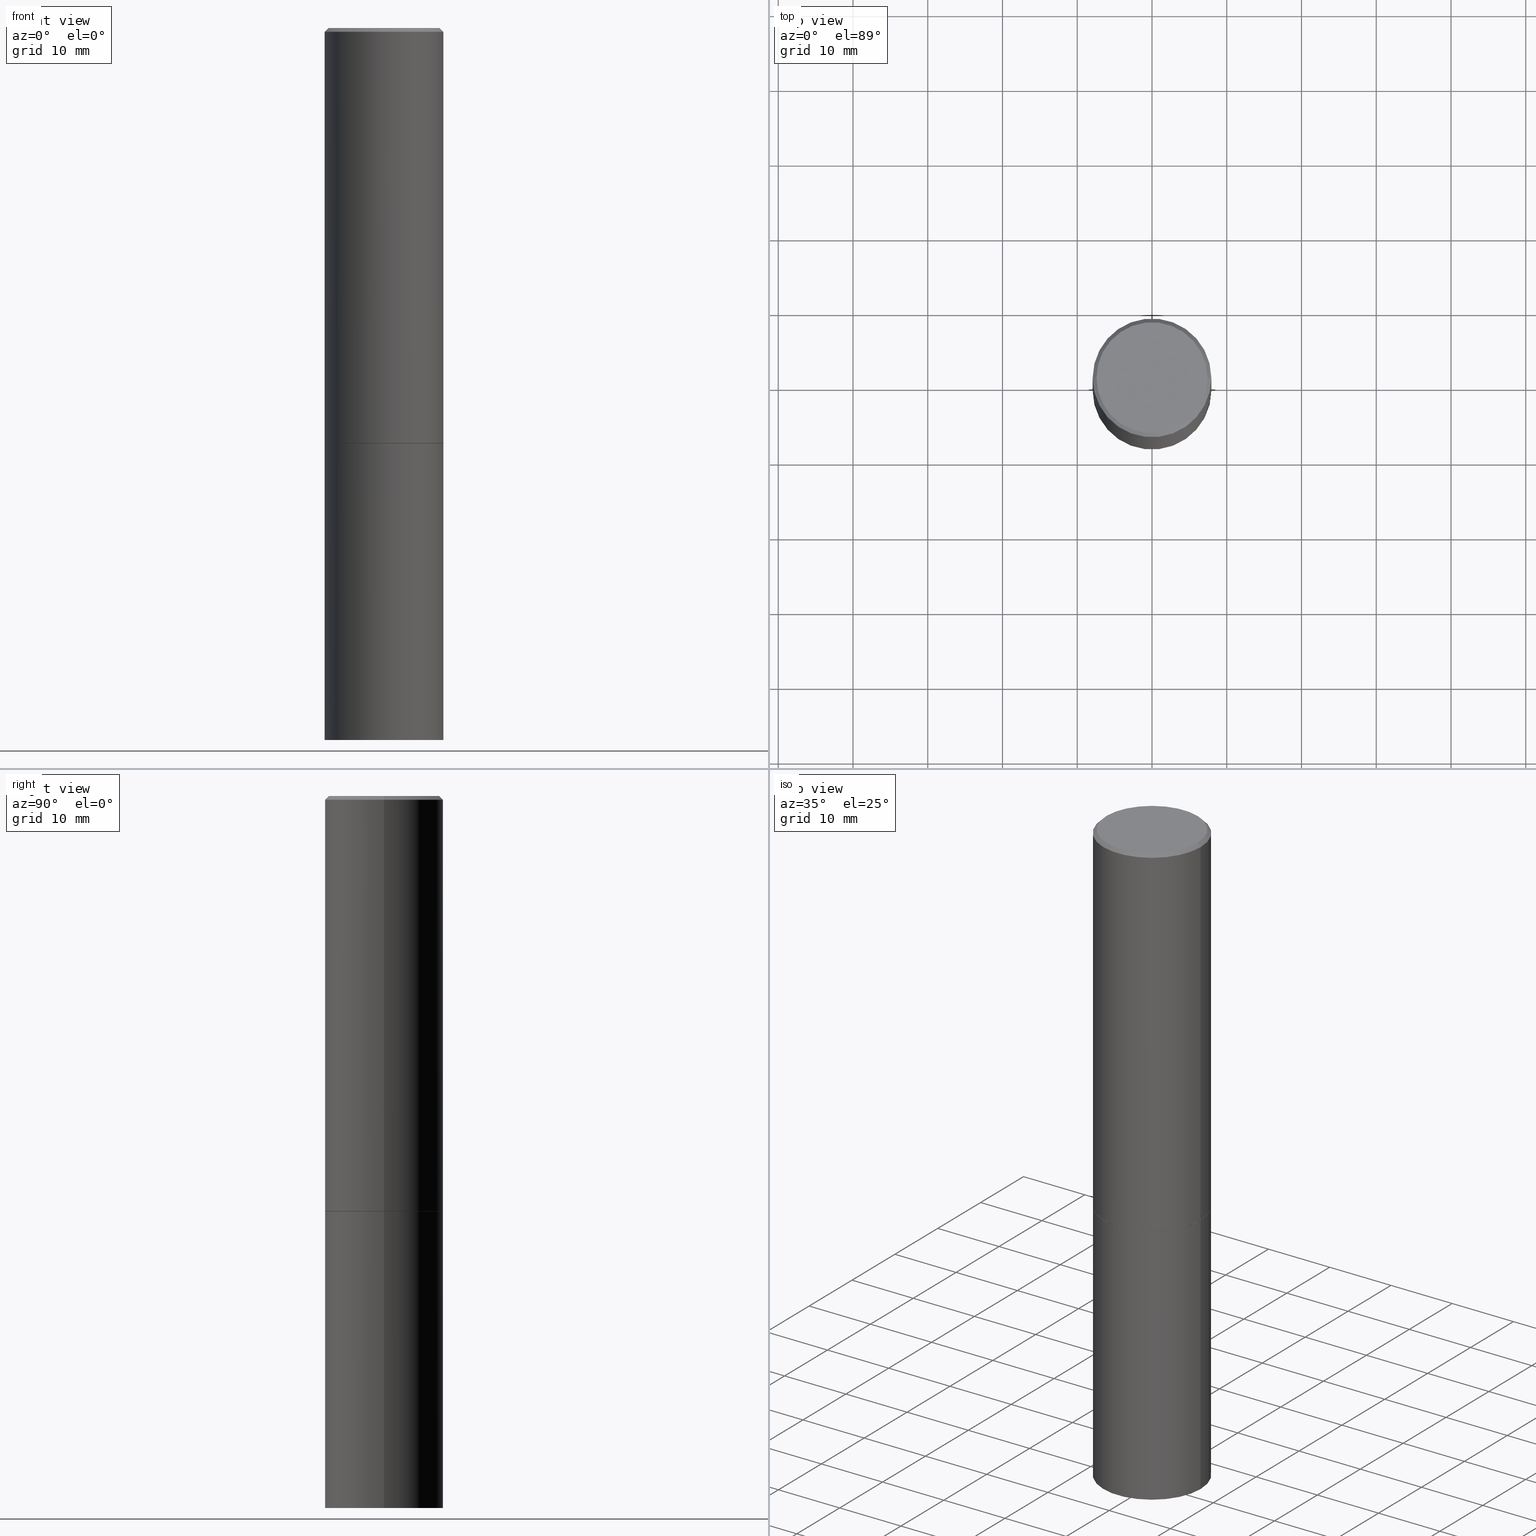
[diagram: canonical four-view strip — front | top / right | iso, engineering-drawing reading convention]
A machine part, canonical four-view strip (front | top / right | iso — engineering-drawing reading convention). The complete STEP part file that produces these views, byte-faithful:
ISO-10303-21;
HEADER;
FILE_DESCRIPTION (( 'STEP AP203' ),
    '1' );
FILE_NAME ('77379.STEP',
    '2024-05-03T15:05:38',
    ( '' ),
    ( '' ),
    'SwSTEP 2.0',
    'SolidWorks 2023',
    '' );
FILE_SCHEMA (( 'CONFIG_CONTROL_DESIGN' ));
ENDSEC;

DATA;
#1 = AXIS2_PLACEMENT_3D ( 'NONE', #196, #319, #249 ) ;
#2 = DATE_TIME_ROLE ( 'creation_date' ) ;
#3 = CARTESIAN_POINT ( 'NONE',  ( 5.349463013529986305E-29, -7.637615428719381825E-15, -2.187500000000000000 ) ) ;
#4 = PERSON_AND_ORGANIZATION ( #237, #353 ) ;
#5 = APPROVAL ( #264, 'UNSPECIFIED' ) ;
#6 = ADVANCED_FACE ( 'NONE', ( #266 ), #269, .T. ) ;
#7 = DIRECTION ( 'NONE',  ( -2.445468806185136597E-29, 3.491481338843145583E-15, 1.000000000000000000 ) ) ;
#8 = VERTEX_POINT ( 'NONE', #366 ) ;
#9 = CARTESIAN_POINT ( 'NONE',  ( 0.3114999999999999991, -9.812808302818652580E-15, -2.187500000000000000 ) ) ;
#10 = CARTESIAN_POINT ( 'NONE',  ( -0.3125000000000000000, -8.144889175440275750E-15, -2.187500000000000000 ) ) ;
#11 = VERTEX_POINT ( 'NONE', #212 ) ;
#12 = APPROVAL_STATUS ( 'not_yet_approved' ) ;
#13 = VECTOR ( 'NONE', #91, 39.37007874015748143 ) ;
#14 = CARTESIAN_POINT ( 'NONE',  ( 2.182175836777049855E-15, 0.3124999999999868994, -3.750000000000001332 ) ) ;
#15 = COORDINATED_UNIVERSAL_TIME_OFFSET ( 5, 0, .BEHIND. ) ;
#16 = LOCAL_TIME ( 11, 5, 38.00000000000000000, #122 ) ;
#17 = DIRECTION ( 'NONE',  ( -2.445468806185136597E-29, 3.491481338843145583E-15, 1.000000000000000000 ) ) ;
#18 = AXIS2_PLACEMENT_3D ( 'NONE', #116, #148, #216 ) ;
#19 = DIRECTION ( 'NONE',  ( -2.438088387897960049E-29, 3.491481338843145188E-15, 1.000000000000000000 ) ) ;
#20 = EDGE_CURVE ( 'NONE', #312, #115, #53, .T. ) ;
#21 = CALENDAR_DATE ( 2024, 3, 5 ) ;
#22 = FACE_OUTER_BOUND ( 'NONE', #145, .T. ) ;
#23 = VECTOR ( 'NONE', #134, 39.37007874015748143 ) ;
#24 = EDGE_LOOP ( 'NONE', ( #320, #309 ) ) ;
#25 = AXIS2_PLACEMENT_3D ( 'NONE', #45, #296, #350 ) ;
#26 = ORIENTED_EDGE ( 'NONE', *, *, #183, .T. ) ;
#27 = EDGE_LOOP ( 'NONE', ( #209, #365, #273, #213 ) ) ;
#28 = CONICAL_SURFACE ( 'NONE', #230, 0.3114999999999999991, 0.7853981633973801113 ) ;
#29 = PERSON_AND_ORGANIZATION ( #237, #353 ) ;
#30 = DIRECTION ( 'NONE',  ( -1.000000000000000000, 6.982962677686265133E-15, 0.000000000000000000 ) ) ;
#31 = LINE ( 'NONE', #76, #222 ) ;
#32 = CARTESIAN_POINT ( 'NONE',  ( -0.3124999999999998335, 2.112346210000093866E-15, -0.02000000000000008021 ) ) ;
#33 = PERSON_AND_ORGANIZATION_ROLE ( 'creator' ) ;
#34 = DIRECTION ( 'NONE',  ( 2.445468806185136597E-29, -3.491481338843145583E-15, -1.000000000000000000 ) ) ;
#35 = CYLINDRICAL_SURFACE ( 'NONE', #100, 0.3124999999999998890 ) ;
#36 = ADVANCED_FACE ( 'NONE', ( #92 ), #74, .F. ) ;
#37 = APPLICATION_PROTOCOL_DEFINITION ( 'international standard', 'config_control_design', 1994, #110 ) ;
#38 = AXIS2_PLACEMENT_3D ( 'NONE', #137, #334, #354 ) ;
#39 = DIRECTION ( 'NONE',  ( -2.445468806185136597E-29, 3.491481338843145583E-15, 1.000000000000000000 ) ) ;
#40 = CARTESIAN_POINT ( 'NONE',  ( -0.2924999999999997602, 2.077431396611662611E-15, 8.537024980186416602E-18 ) ) ;
#41 = FACE_OUTER_BOUND ( 'NONE', #198, .T. ) ;
#42 = CARTESIAN_POINT ( 'NONE',  ( 0.3114999999999999991, -9.812808302818652580E-15, -2.187500000000000000 ) ) ;
#43 = CARTESIAN_POINT ( 'NONE',  ( 0.000000000000000000, 0.000000000000000000, 0.000000000000000000 ) ) ;
#44 = APPROVAL ( #12, 'UNSPECIFIED' ) ;
#45 = CARTESIAN_POINT ( 'NONE',  ( 5.349463013529986305E-29, -7.637615428719381825E-15, -2.187500000000000000 ) ) ;
#46 = CARTESIAN_POINT ( 'NONE',  ( 5.349463013529986305E-29, -7.637615428719381825E-15, -2.187500000000000000 ) ) ;
#47 = COORDINATED_UNIVERSAL_TIME_OFFSET ( 5, 0, .BEHIND. ) ;
#48 = CARTESIAN_POINT ( 'NONE',  ( 0.3124999999999998890, -2.182175836776957558E-15, 1.523805242436229235E-29 ) ) ;
#49 = DIRECTION ( 'NONE',  ( -2.445468806185136597E-29, 3.491481338843145583E-15, 1.000000000000000000 ) ) ;
#50 = APPLICATION_CONTEXT ( 'configuration controlled 3d designs of mechanical parts and assemblies' ) ;
#51 = EDGE_CURVE ( 'NONE', #11, #254, #255, .T. ) ;
#52 =( NAMED_UNIT ( * ) SI_UNIT ( $, .STERADIAN. ) SOLID_ANGLE_UNIT ( ) );
#53 = CIRCLE ( 'NONE', #325, 0.3124999999999999445 ) ;
#54 = ORIENTED_EDGE ( 'NONE', *, *, #184, .T. ) ;
#55 = EDGE_LOOP ( 'NONE', ( #220, #306, #347, #271 ) ) ;
#56 = SECURITY_CLASSIFICATION ( '', '', #275 ) ;
#57 = ADVANCED_FACE ( 'NONE', ( #286 ), #35, .T. ) ;
#58 = EDGE_LOOP ( 'NONE', ( #348, #362, #81, #166 ) ) ;
#59 = ORIENTED_EDGE ( 'NONE', *, *, #333, .T. ) ;
#60 = DIRECTION ( 'NONE',  ( 1.000000000000000000, -6.982962677686266711E-15, 0.000000000000000000 ) ) ;
#61 = EDGE_CURVE ( 'NONE', #115, #272, #327, .T. ) ;
#62 = CC_DESIGN_SECURITY_CLASSIFICATION ( #56, ( #228 ) ) ;
#63 = ORIENTED_EDGE ( 'NONE', *, *, #253, .T. ) ;
#64 = CIRCLE ( 'NONE', #169, 0.2924999999999997602 ) ;
#65 = COORDINATED_UNIVERSAL_TIME_OFFSET ( 5, 0, .BEHIND. ) ;
#66 = DIRECTION ( 'NONE',  ( -2.445468806185136597E-29, 3.491481338843145583E-15, 1.000000000000000000 ) ) ;
#67 = DIRECTION ( 'NONE',  ( -2.445468806185136597E-29, 3.491481338843145583E-15, 1.000000000000000000 ) ) ;
#68 = DATE_AND_TIME ( #349, #16 ) ;
#69 = CARTESIAN_POINT ( 'NONE',  ( 4.890937612370293302E-31, -6.982962677686318726E-17, -0.02000000000000008021 ) ) ;
#70 = DIRECTION ( 'NONE',  ( 1.000000000000000000, -6.982962677686266711E-15, 4.876176775795935232E-29 ) ) ;
#71 = APPROVAL_STATUS ( 'not_yet_approved' ) ;
#72 = DIRECTION ( 'NONE',  ( -0.7071067811865469066, 2.468850131082251144E-15, -0.7071067811865479058 ) ) ;
#73 = DIRECTION ( 'NONE',  ( -0.7071067811864992780, 7.493145998870180611E-15, 0.7071067811865957564 ) ) ;
#74 = PLANE ( 'NONE',  #356 ) ;
#75 = CONICAL_SURFACE ( 'NONE', #268, 0.3124999999999998335, 0.7853981633974476129 ) ;
#76 = CARTESIAN_POINT ( 'NONE',  ( 0.3124999999999998335, -2.213735251080465334E-15, -0.02000000000000008021 ) ) ;
#77 = DATE_AND_TIME ( #203, #246 ) ;
#78 = VECTOR ( 'NONE', #161, 39.37007874015748143 ) ;
#79 = ADVANCED_FACE ( 'NONE', ( #324 ), #175, .T. ) ;
#80 = CIRCLE ( 'NONE', #278, 0.3124999999999998335 ) ;
#81 = ORIENTED_EDGE ( 'NONE', *, *, #357, .T. ) ;
#82 = CONICAL_SURFACE ( 'NONE', #316, 0.3124999999999998335, 0.7853981633974476129 ) ;
#83 = VERTEX_POINT ( 'NONE', #171 ) ;
#84 = ORIENTED_EDGE ( 'NONE', *, *, #61, .F. ) ;
#85 = PRODUCT_RELATED_PRODUCT_CATEGORY ( 'detail', '', ( #360 ) ) ;
#86 = DIRECTION ( 'NONE',  ( 0.000000000000000000, 0.000000000000000000, 1.000000000000000000 ) ) ;
#87 = AXIS2_PLACEMENT_3D ( 'NONE', #331, #294, #208 ) ;
#88 = DIRECTION ( 'NONE',  ( -2.445468806185136597E-29, 3.491481338843145583E-15, 1.000000000000000000 ) ) ;
#89 = UNCERTAINTY_MEASURE_WITH_UNIT (LENGTH_MEASURE( 1.000000000000000082E-05 ), #188, 'distance_accuracy_value', 'NONE');
#90 = DIRECTION ( 'NONE',  ( 1.000000000000000000, -6.982962677686269077E-15, 0.000000000000000000 ) ) ;
#91 = DIRECTION ( 'NONE',  ( -2.445468806185136877E-29, 3.491481338843145188E-15, 1.000000000000000000 ) ) ;
#92 = FACE_OUTER_BOUND ( 'NONE', #24, .T. ) ;
#93 = DATE_AND_TIME ( #225, #104 ) ;
#94 = VERTEX_POINT ( 'NONE', #293 ) ;
#95 = EDGE_CURVE ( 'NONE', #123, #94, #31, .T. ) ;
#96 = CARTESIAN_POINT ( 'NONE',  ( -0.3114999999999999991, -5.424274806826669752E-15, -2.187500000000000000 ) ) ;
#97 = APPROVAL_DATE_TIME ( #127, #142 ) ;
#98 = LINE ( 'NONE', #48, #78 ) ;
#99 = LOCAL_TIME ( 11, 5, 38.00000000000000000, #65 ) ;
#100 = AXIS2_PLACEMENT_3D ( 'NONE', #201, #283, #70 ) ;
#101 = AXIS2_PLACEMENT_3D ( 'NONE', #14, #126, #345 ) ;
#102 = DIRECTION ( 'NONE',  ( 1.000000000000000000, -6.982962677686266711E-15, 4.876067333457693400E-29 ) ) ;
#103 = ADVANCED_BREP_SHAPE_REPRESENTATION ( '77379', ( #358, #364, #355 ), #206 ) ;
#104 = LOCAL_TIME ( 11, 5, 38.00000000000000000, #256 ) ;
#105 = ORIENTED_EDGE ( 'NONE', *, *, #276, .F. ) ;
#106 = DIMENSIONAL_EXPONENTS ( 1.000000000000000000, 0.000000000000000000, 0.000000000000000000, 0.000000000000000000, 0.000000000000000000, 0.000000000000000000, 0.000000000000000000 ) ;
#107 = APPROVAL_PERSON_ORGANIZATION ( #4, #142, #155 ) ;
#108 = AXIS2_PLACEMENT_3D ( 'NONE', #259, #17, #102 ) ;
#109 =( LENGTH_UNIT ( ) NAMED_UNIT ( * ) SI_UNIT ( $, .METRE. ) );
#110 = APPLICATION_CONTEXT ( 'configuration controlled 3d designs of mechanical parts and assemblies' ) ;
#111 = CC_DESIGN_APPROVAL ( #5, ( #56 ) ) ;
#112 = ORIENTED_EDGE ( 'NONE', *, *, #51, .T. ) ;
#113 = VECTOR ( 'NONE', #73, 39.37007874015748143 ) ;
#114 = VERTEX_POINT ( 'NONE', #10 ) ;
#115 = VERTEX_POINT ( 'NONE', #224 ) ;
#116 = CARTESIAN_POINT ( 'NONE',  ( 5.347017544723800702E-29, -7.634123947380537240E-15, -2.186500000000000110 ) ) ;
#117 = ORIENTED_EDGE ( 'NONE', *, *, #195, .T. ) ;
#118 = DIRECTION ( 'NONE',  ( 1.000000000000000000, -6.982962677686265133E-15, 0.000000000000000000 ) ) ;
#119 = FACE_OUTER_BOUND ( 'NONE', #187, .T. ) ;
#120 = CC_DESIGN_APPROVAL ( #44, ( #234 ) ) ;
#121 = LINE ( 'NONE', #326, #274 ) ;
#122 = COORDINATED_UNIVERSAL_TIME_OFFSET ( 5, 0, .BEHIND. ) ;
#123 = VERTEX_POINT ( 'NONE', #179 ) ;
#124 = ADVANCED_FACE ( 'NONE', ( #295 ), #154, .T. ) ;
#125 = DIRECTION ( 'NONE',  ( -2.445468806185136597E-29, 3.491481338843145583E-15, 1.000000000000000000 ) ) ;
#126 = DIRECTION ( 'NONE',  ( 2.438088387897960049E-29, -3.491481338843145188E-15, -1.000000000000000000 ) ) ;
#127 = DATE_AND_TIME ( #193, #219 ) ;
#128 = CC_DESIGN_PERSON_AND_ORGANIZATION_ASSIGNMENT ( #29, #167, ( #228 ) ) ;
#129 = CARTESIAN_POINT ( 'NONE',  ( 2.182175836777011595E-15, 0.3124999999999923395, -2.187500000000001332 ) ) ;
#130 = CIRCLE ( 'NONE', #186, 0.3124999999999998335 ) ;
#131 = PLANE ( 'NONE',  #339 ) ;
#132 = DIRECTION ( 'NONE',  ( -2.445468806185136597E-29, 3.491481338843145583E-15, 1.000000000000000000 ) ) ;
#133 = EDGE_CURVE ( 'NONE', #272, #94, #130, .T. ) ;
#134 = DIRECTION ( 'NONE',  ( 0.7071067811864992780, -2.468850131081751401E-15, 0.7071067811865957564 ) ) ;
#135 = AXIS2_PLACEMENT_3D ( 'NONE', #199, #125, #174 ) ;
#136 = PERSON_AND_ORGANIZATION ( #237, #353 ) ;
#137 = CARTESIAN_POINT ( 'NONE',  ( 2.042516583223230962E-15, 0.2924999999999997602, -1.016989779121518801E-15 ) ) ;
#138 = AXIS2_PLACEMENT_3D ( 'NONE', #150, #257, #317 ) ;
#139 = EDGE_LOOP ( 'NONE', ( #26, #341 ) ) ;
#140 = APPLICATION_PROTOCOL_DEFINITION ( 'international standard', 'config_control_design', 1994, #50 ) ;
#141 = ORIENTED_EDGE ( 'NONE', *, *, #195, .F. ) ;
#142 = APPROVAL ( #71, 'UNSPECIFIED' ) ;
#143 = ADVANCED_FACE ( 'NONE', ( #41 ), #217, .T. ) ;
#144 = DIRECTION ( 'NONE',  ( 1.000000000000000000, -6.982962677686266711E-15, 4.876176775795935232E-29 ) ) ;
#145 = EDGE_LOOP ( 'NONE', ( #105, #112, #117, #247 ) ) ;
#146 = CLOSED_SHELL ( 'NONE', ( #321, #6, #300, #337, #57, #180, #297, #177 ) ) ;
#147 = PERSON_AND_ORGANIZATION ( #237, #353 ) ;
#148 = DIRECTION ( 'NONE',  ( -2.445468806185136597E-29, 3.491481338843145583E-15, 1.000000000000000000 ) ) ;
#149 = DIRECTION ( 'NONE',  ( 0.7071067811865469066, -7.319954787623252890E-15, -0.7071067811865479058 ) ) ;
#150 = CARTESIAN_POINT ( 'NONE',  ( 0.000000000000000000, 0.000000000000000000, 0.000000000000000000 ) ) ;
#151 = DIRECTION ( 'NONE',  ( -1.000000000000000000, 6.982962677686265133E-15, 0.000000000000000000 ) ) ;
#152 = LINE ( 'NONE', #223, #13 ) ;
#153 = EDGE_CURVE ( 'NONE', #114, #8, #181, .T. ) ;
#154 = CYLINDRICAL_SURFACE ( 'NONE', #303, 0.3125000000000000000 ) ;
#155 = APPROVAL_ROLE ( '' ) ;
#156 = DIRECTION ( 'NONE',  ( -2.445468806185136877E-29, 3.491481338843145188E-15, 1.000000000000000000 ) ) ;
#157 = DIRECTION ( 'NONE',  ( -2.445468806185136597E-29, 3.491481338843145583E-15, 1.000000000000000000 ) ) ;
#158 = DATE_AND_TIME ( #21, #99 ) ;
#159 = FACE_OUTER_BOUND ( 'NONE', #343, .T. ) ;
#160 = AXIS2_PLACEMENT_3D ( 'NONE', #231, #67, #329 ) ;
#161 = DIRECTION ( 'NONE',  ( -2.445468806185136877E-29, 3.491481338843145188E-15, 1.000000000000000000 ) ) ;
#162 = DIRECTION ( 'NONE',  ( 1.000000000000000000, -6.982962677686269077E-15, 0.000000000000000000 ) ) ;
#163 = CIRCLE ( 'NONE', #1, 0.3125000000000000000 ) ;
#164 = ORIENTED_EDGE ( 'NONE', *, *, #61, .T. ) ;
#165 = ORIENTED_EDGE ( 'NONE', *, *, #20, .T. ) ;
#166 = ORIENTED_EDGE ( 'NONE', *, *, #133, .T. ) ;
#167 = PERSON_AND_ORGANIZATION_ROLE ( 'design_supplier' ) ;
#168 = ORIENTED_EDGE ( 'NONE', *, *, #133, .F. ) ;
#169 = AXIS2_PLACEMENT_3D ( 'NONE', #205, #132, #178 ) ;
#170 = APPROVAL_ROLE ( '' ) ;
#171 = CARTESIAN_POINT ( 'NONE',  ( 0.3125000000000000000, -1.527523085743875734E-14, -3.750000000000000000 ) ) ;
#172 = DIRECTION ( 'NONE',  ( -1.000000000000000000, 6.982962677686265922E-15, -4.876176775795935793E-29 ) ) ;
#173 = CARTESIAN_POINT ( 'NONE',  ( 0.3124999999999999445, -9.816299784157495587E-15, -2.186500000000000110 ) ) ;
#174 = DIRECTION ( 'NONE',  ( 1.000000000000000000, -6.982962677686269077E-15, 0.000000000000000000 ) ) ;
#175 = CYLINDRICAL_SURFACE ( 'NONE', #138, 0.3125000000000000000 ) ;
#176 = CIRCLE ( 'NONE', #87, 0.3114999999999999991 ) ;
#177 = ADVANCED_FACE ( 'NONE', ( #332 ), #267, .F. ) ;
#178 = DIRECTION ( 'NONE',  ( 1.000000000000000000, -6.982962677686266711E-15, 4.876067333457693400E-29 ) ) ;
#179 = CARTESIAN_POINT ( 'NONE',  ( 0.2924999999999997602, -2.110215457714318353E-15, 8.537024980215342529E-18 ) ) ;
#180 = ADVANCED_FACE ( 'NONE', ( #22 ), #292, .T. ) ;
#181 = CIRCLE ( 'NONE', #308, 0.3125000000000000000 ) ;
#182 = APPROVAL_DATE_TIME ( #77, #5 ) ;
#183 = EDGE_CURVE ( 'NONE', #284, #123, #236, .T. ) ;
#184 = EDGE_CURVE ( 'NONE', #312, #94, #98, .T. ) ;
#185 = LENGTH_MEASURE_WITH_UNIT ( LENGTH_MEASURE( 0.02539999999999999897 ), #109 );
#186 = AXIS2_PLACEMENT_3D ( 'NONE', #202, #157, #118 ) ;
#187 = EDGE_LOOP ( 'NONE', ( #63, #363, #211, #141 ) ) ;
#188 =( CONVERSION_BASED_UNIT ( 'INCH', #185 ) LENGTH_UNIT ( ) NAMED_UNIT ( #106 ) );
#189 = ORIENTED_EDGE ( 'NONE', *, *, #184, .F. ) ;
#190 = DIRECTION ( 'NONE',  ( -2.445468806185136597E-29, 3.491481338843145583E-15, 1.000000000000000000 ) ) ;
#191 = ORIENTED_EDGE ( 'NONE', *, *, #310, .F. ) ;
#192 = DIRECTION ( 'NONE',  ( -2.445468806185136597E-29, 3.491481338843145583E-15, 1.000000000000000000 ) ) ;
#193 = CALENDAR_DATE ( 2024, 3, 5 ) ;
#194 = ORIENTED_EDGE ( 'NONE', *, *, #361, .F. ) ;
#195 = EDGE_CURVE ( 'NONE', #254, #312, #261, .T. ) ;
#196 = CARTESIAN_POINT ( 'NONE',  ( 9.170508023194262238E-29, -1.309305502066179741E-14, -3.750000000000000000 ) ) ;
#197 = PERSON_AND_ORGANIZATION ( #237, #353 ) ;
#198 = EDGE_LOOP ( 'NONE', ( #342, #191 ) ) ;
#199 = CARTESIAN_POINT ( 'NONE',  ( 9.170508023194262238E-29, -1.309305502066179741E-14, -3.750000000000000000 ) ) ;
#200 = PERSON_AND_ORGANIZATION ( #237, #353 ) ;
#201 = CARTESIAN_POINT ( 'NONE',  ( 0.000000000000000000, 0.000000000000000000, 0.000000000000000000 ) ) ;
#202 = CARTESIAN_POINT ( 'NONE',  ( 4.890937612370293302E-31, -6.982962677686318726E-17, -0.02000000000000008021 ) ) ;
#203 = CALENDAR_DATE ( 2024, 3, 5 ) ;
#204 = CIRCLE ( 'NONE', #135, 0.3125000000000000000 ) ;
#205 = CARTESIAN_POINT ( 'NONE',  ( -2.087702828670439639E-46, 2.980686340760894400E-32, 8.537024980200822558E-18 ) ) ;
#206 =( GEOMETRIC_REPRESENTATION_CONTEXT ( 3 ) GLOBAL_UNCERTAINTY_ASSIGNED_CONTEXT ( ( #89 ) ) GLOBAL_UNIT_ASSIGNED_CONTEXT ( ( #188, #270, #52 ) ) REPRESENTATION_CONTEXT ( 'NONE', 'WORKASPACE' ) );
#207 = VECTOR ( 'NONE', #72, 39.37007874015748854 ) ;
#208 = DIRECTION ( 'NONE',  ( 1.000000000000000000, -6.982962677686265922E-15, 0.000000000000000000 ) ) ;
#209 = ORIENTED_EDGE ( 'NONE', *, *, #240, .F. ) ;
#210 = DIRECTION ( 'NONE',  ( 1.000000000000000000, 0.000000000000000000, 0.000000000000000000 ) ) ;
#211 = ORIENTED_EDGE ( 'NONE', *, *, #20, .F. ) ;
#212 = CARTESIAN_POINT ( 'NONE',  ( -0.3114999999999999991, -5.418976352478447350E-15, -2.187500000000000000 ) ) ;
#213 = ORIENTED_EDGE ( 'NONE', *, *, #357, .F. ) ;
#214 = CC_DESIGN_DATE_AND_TIME_ASSIGNMENT ( #158, #238, ( #56 ) ) ;
#215 = CARTESIAN_POINT ( 'NONE',  ( 5.349463013529986305E-29, -7.637615428719381825E-15, -2.187500000000000000 ) ) ;
#216 = DIRECTION ( 'NONE',  ( 1.000000000000000000, -6.982962677686266711E-15, 0.000000000000000000 ) ) ;
#217 = PLANE ( 'NONE',  #101 ) ;
#218 = PERSON_AND_ORGANIZATION ( #237, #353 ) ;
#219 = LOCAL_TIME ( 11, 5, 38.00000000000000000, #15 ) ;
#220 = ORIENTED_EDGE ( 'NONE', *, *, #265, .T. ) ;
#221 = DIRECTION ( 'NONE',  ( 1.000000000000000000, -6.982962677686265133E-15, 0.000000000000000000 ) ) ;
#222 = VECTOR ( 'NONE', #149, 39.37007874015748854 ) ;
#223 = CARTESIAN_POINT ( 'NONE',  ( 0.3125000000000000000, -2.182175836776958347E-15, 1.523805242436230075E-29 ) ) ;
#224 = CARTESIAN_POINT ( 'NONE',  ( -0.3124999999999999445, -1.631530737828387780E-15, -2.186500000000000110 ) ) ;
#225 = CALENDAR_DATE ( 2024, 3, 5 ) ;
#226 = EDGE_LOOP ( 'NONE', ( #84, #59, #54, #168 ) ) ;
#227 = LINE ( 'NONE', #96, #113 ) ;
#228 = PRODUCT_DEFINITION_FORMATION_WITH_SPECIFIED_SOURCE ( 'ANY', '', #360, .NOT_KNOWN. ) ;
#229 = DIRECTION ( 'NONE',  ( -2.445468806185136877E-29, 3.491481338843145188E-15, 1.000000000000000000 ) ) ;
#230 = AXIS2_PLACEMENT_3D ( 'NONE', #215, #66, #288 ) ;
#231 = CARTESIAN_POINT ( 'NONE',  ( 5.349463013529986305E-29, -7.637615428719381825E-15, -2.187500000000000000 ) ) ;
#232 = CARTESIAN_POINT ( 'NONE',  ( 5.349463013529986305E-29, -7.637615428719381825E-15, -2.187500000000000000 ) ) ;
#233 = CARTESIAN_POINT ( 'NONE',  ( -0.3125000000000000000, -8.144889175440275750E-15, -3.750000000000000000 ) ) ;
#234 = PRODUCT_DEFINITION ( 'UNKNOWN', '', #228, #277 ) ;
#235 = CC_DESIGN_PERSON_AND_ORGANIZATION_ASSIGNMENT ( #315, #311, ( #228 ) ) ;
#236 = CIRCLE ( 'NONE', #108, 0.2924999999999997602 ) ;
#237 = PERSON ( 'UNSPECIFIED', 'UNSPECIFIED', 'UNSPECIFIED', ('UNSPECIFIED'), ('UNSPECIFIED'), ('UNSPECIFIED') ) ;
#238 = DATE_TIME_ROLE ( 'classification_date' ) ;
#239 = PRODUCT_DEFINITION_SHAPE ( 'NONE', 'NONE',  #234 ) ;
#240 = EDGE_CURVE ( 'NONE', #123, #284, #64, .T. ) ;
#241 = PERSON_AND_ORGANIZATION_ROLE ( 'design_owner' ) ;
#242 = APPROVAL_PERSON_ORGANIZATION ( #200, #5, #299 ) ;
#243 = VERTEX_POINT ( 'NONE', #233 ) ;
#244 = MECHANICAL_CONTEXT ( 'NONE', #50, 'mechanical' ) ;
#245 = ORIENTED_EDGE ( 'NONE', *, *, #153, .F. ) ;
#246 = LOCAL_TIME ( 11, 5, 38.00000000000000000, #47 ) ;
#247 = ORIENTED_EDGE ( 'NONE', *, *, #333, .F. ) ;
#248 = CIRCLE ( 'NONE', #304, 0.3125000000000000000 ) ;
#249 = DIRECTION ( 'NONE',  ( 1.000000000000000000, -6.982962677686269077E-15, 0.000000000000000000 ) ) ;
#250 = ORIENTED_EDGE ( 'NONE', *, *, #253, .F. ) ;
#251 = PERSON_AND_ORGANIZATION_ROLE ( 'classification_officer' ) ;
#252 = CARTESIAN_POINT ( 'NONE',  ( -0.3124999999999998890, 2.220446049250312292E-15, -1.537167215704657391E-29 ) ) ;
#253 = EDGE_CURVE ( 'NONE', #254, #11, #176, .T. ) ;
#254 = VERTEX_POINT ( 'NONE', #9 ) ;
#255 = CIRCLE ( 'NONE', #160, 0.3114999999999999991 ) ;
#256 = COORDINATED_UNIVERSAL_TIME_OFFSET ( 5, 0, .BEHIND. ) ;
#257 = DIRECTION ( 'NONE',  ( -2.445468806185136597E-29, 3.491481338843145583E-15, 1.000000000000000000 ) ) ;
#258 = EDGE_CURVE ( 'NONE', #243, #114, #121, .T. ) ;
#259 = CARTESIAN_POINT ( 'NONE',  ( -2.087702828670439639E-46, 2.980686340760894400E-32, 8.537024980200822558E-18 ) ) ;
#260 = AXIS2_PLACEMENT_3D ( 'NONE', #335, #88, #144 ) ;
#261 = LINE ( 'NONE', #42, #23 ) ;
#262 = EDGE_CURVE ( 'NONE', #83, #8, #152, .T. ) ;
#263 = CC_DESIGN_PERSON_AND_ORGANIZATION_ASSIGNMENT ( #197, #33, ( #234 ) ) ;
#264 = APPROVAL_STATUS ( 'not_yet_approved' ) ;
#265 = EDGE_CURVE ( 'NONE', #83, #243, #204, .T. ) ;
#266 = FACE_OUTER_BOUND ( 'NONE', #305, .T. ) ;
#267 = PLANE ( 'NONE',  #38 ) ;
#268 = AXIS2_PLACEMENT_3D ( 'NONE', #69, #351, #30 ) ;
#269 = CYLINDRICAL_SURFACE ( 'NONE', #260, 0.3124999999999998890 ) ;
#270 =( NAMED_UNIT ( * ) PLANE_ANGLE_UNIT ( ) SI_UNIT ( $, .RADIAN. ) );
#271 = ORIENTED_EDGE ( 'NONE', *, *, #262, .F. ) ;
#272 = VERTEX_POINT ( 'NONE', #323 ) ;
#273 = ORIENTED_EDGE ( 'NONE', *, *, #361, .T. ) ;
#274 = VECTOR ( 'NONE', #229, 39.37007874015748143 ) ;
#275 = SECURITY_CLASSIFICATION_LEVEL ( 'unclassified' ) ;
#276 = EDGE_CURVE ( 'NONE', #11, #115, #227, .T. ) ;
#277 = DESIGN_CONTEXT ( 'detailed design', #110, 'design' ) ;
#278 = AXIS2_PLACEMENT_3D ( 'NONE', #290, #39, #221 ) ;
#279 = APPROVAL_DATE_TIME ( #68, #44 ) ;
#280 = VECTOR ( 'NONE', #156, 39.37007874015748143 ) ;
#281 = ORIENTED_EDGE ( 'NONE', *, *, #51, .F. ) ;
#282 = FACE_OUTER_BOUND ( 'NONE', #27, .T. ) ;
#283 = DIRECTION ( 'NONE',  ( -2.445468806185136597E-29, 3.491481338843145583E-15, 1.000000000000000000 ) ) ;
#284 = VERTEX_POINT ( 'NONE', #40 ) ;
#285 = CARTESIAN_POINT ( 'NONE',  ( 4.890937612370293302E-31, -6.982962677686318726E-17, -0.02000000000000008021 ) ) ;
#286 = FACE_OUTER_BOUND ( 'NONE', #226, .T. ) ;
#287 = CC_DESIGN_DATE_AND_TIME_ASSIGNMENT ( #93, #2, ( #234 ) ) ;
#288 = DIRECTION ( 'NONE',  ( 1.000000000000000000, -6.982962677686265922E-15, 0.000000000000000000 ) ) ;
#289 = DIRECTION ( 'NONE',  ( 1.000000000000000000, -6.982962677686266711E-15, 4.876176775795936353E-29 ) ) ;
#290 = CARTESIAN_POINT ( 'NONE',  ( 4.890937612370293302E-31, -6.982962677686318726E-17, -0.02000000000000008021 ) ) ;
#291 = EDGE_LOOP ( 'NONE', ( #318, #313, #307, #245 ) ) ;
#292 = CONICAL_SURFACE ( 'NONE', #25, 0.3114999999999999991, 0.7853981633973801113 ) ;
#293 = CARTESIAN_POINT ( 'NONE',  ( 0.3124999999999998335, -2.213735251080465334E-15, -0.02000000000000008021 ) ) ;
#294 = DIRECTION ( 'NONE',  ( -2.445468806185136597E-29, 3.491481338843145583E-15, 1.000000000000000000 ) ) ;
#295 = FACE_OUTER_BOUND ( 'NONE', #55, .T. ) ;
#296 = DIRECTION ( 'NONE',  ( -2.445468806185136597E-29, 3.491481338843145583E-15, 1.000000000000000000 ) ) ;
#297 = ADVANCED_FACE ( 'NONE', ( #159 ), #131, .F. ) ;
#298 = DIRECTION ( 'NONE',  ( 1.000000000000000000, -6.982962677686265922E-15, 4.876176775795935793E-29 ) ) ;
#299 = APPROVAL_ROLE ( '' ) ;
#300 = ADVANCED_FACE ( 'NONE', ( #282 ), #75, .T. ) ;
#301 = CC_DESIGN_APPROVAL ( #142, ( #228 ) ) ;
#302 = CC_DESIGN_PERSON_AND_ORGANIZATION_ASSIGNMENT ( #136, #241, ( #360 ) ) ;
#303 = AXIS2_PLACEMENT_3D ( 'NONE', #43, #7, #289 ) ;
#304 = AXIS2_PLACEMENT_3D ( 'NONE', #3, #192, #90 ) ;
#305 = EDGE_LOOP ( 'NONE', ( #165, #164, #194, #189 ) ) ;
#306 = ORIENTED_EDGE ( 'NONE', *, *, #258, .T. ) ;
#307 = ORIENTED_EDGE ( 'NONE', *, *, #262, .T. ) ;
#308 = AXIS2_PLACEMENT_3D ( 'NONE', #232, #49, #162 ) ;
#309 = ORIENTED_EDGE ( 'NONE', *, *, #153, .T. ) ;
#310 = EDGE_CURVE ( 'NONE', #243, #83, #163, .T. ) ;
#311 = PERSON_AND_ORGANIZATION_ROLE ( 'creator' ) ;
#312 = VERTEX_POINT ( 'NONE', #173 ) ;
#313 = ORIENTED_EDGE ( 'NONE', *, *, #310, .T. ) ;
#314 = EDGE_CURVE ( 'NONE', #8, #114, #248, .T. ) ;
#315 = PERSON_AND_ORGANIZATION ( #237, #353 ) ;
#316 = AXIS2_PLACEMENT_3D ( 'NONE', #285, #34, #151 ) ;
#317 = DIRECTION ( 'NONE',  ( 1.000000000000000000, -6.982962677686266711E-15, 4.876176775795936353E-29 ) ) ;
#318 = ORIENTED_EDGE ( 'NONE', *, *, #258, .F. ) ;
#319 = DIRECTION ( 'NONE',  ( -2.445468806185136597E-29, 3.491481338843145583E-15, 1.000000000000000000 ) ) ;
#320 = ORIENTED_EDGE ( 'NONE', *, *, #314, .T. ) ;
#321 = ADVANCED_FACE ( 'NONE', ( #119 ), #28, .T. ) ;
#322 = LINE ( 'NONE', #32, #207 ) ;
#323 = CARTESIAN_POINT ( 'NONE',  ( -0.3124999999999998335, 2.112346210000093866E-15, -0.02000000000000008021 ) ) ;
#324 = FACE_OUTER_BOUND ( 'NONE', #291, .T. ) ;
#325 = AXIS2_PLACEMENT_3D ( 'NONE', #340, #190, #60 ) ;
#326 = CARTESIAN_POINT ( 'NONE',  ( -0.3125000000000000000, 2.220446049250313081E-15, -1.537167215704658232E-29 ) ) ;
#327 = LINE ( 'NONE', #252, #280 ) ;
#328 = SHAPE_DEFINITION_REPRESENTATION ( #239, #103 ) ;
#329 = DIRECTION ( 'NONE',  ( 1.000000000000000000, -6.982962677686265922E-15, 0.000000000000000000 ) ) ;
#330 = APPROVAL_PERSON_ORGANIZATION ( #218, #44, #170 ) ;
#331 = CARTESIAN_POINT ( 'NONE',  ( 5.349463013529986305E-29, -7.637615428719381825E-15, -2.187500000000000000 ) ) ;
#332 = FACE_OUTER_BOUND ( 'NONE', #139, .T. ) ;
#333 = EDGE_CURVE ( 'NONE', #115, #312, #336, .T. ) ;
#334 = DIRECTION ( 'NONE',  ( 2.438088387897960049E-29, -3.491481338843145188E-15, -1.000000000000000000 ) ) ;
#335 = CARTESIAN_POINT ( 'NONE',  ( 0.000000000000000000, 0.000000000000000000, 0.000000000000000000 ) ) ;
#336 = CIRCLE ( 'NONE', #18, 0.3124999999999999445 ) ;
#337 = ADVANCED_FACE ( 'NONE', ( #344 ), #82, .T. ) ;
#338 = CARTESIAN_POINT ( 'NONE',  ( 0.000000000000000000, 0.000000000000000000, 0.000000000000000000 ) ) ;
#339 = AXIS2_PLACEMENT_3D ( 'NONE', #46, #19, #298 ) ;
#340 = CARTESIAN_POINT ( 'NONE',  ( 5.347017544723800702E-29, -7.634123947380537240E-15, -2.186500000000000110 ) ) ;
#341 = ORIENTED_EDGE ( 'NONE', *, *, #240, .T. ) ;
#342 = ORIENTED_EDGE ( 'NONE', *, *, #265, .F. ) ;
#343 = EDGE_LOOP ( 'NONE', ( #250, #281 ) ) ;
#344 = FACE_OUTER_BOUND ( 'NONE', #58, .T. ) ;
#345 = DIRECTION ( 'NONE',  ( -1.000000000000000000, 6.982962677686265922E-15, -4.876176775795935793E-29 ) ) ;
#346 = CLOSED_SHELL ( 'NONE', ( #124, #143, #36, #79 ) ) ;
#347 = ORIENTED_EDGE ( 'NONE', *, *, #314, .F. ) ;
#348 = ORIENTED_EDGE ( 'NONE', *, *, #95, .F. ) ;
#349 = CALENDAR_DATE ( 2024, 3, 5 ) ;
#350 = DIRECTION ( 'NONE',  ( 1.000000000000000000, -6.982962677686265922E-15, 0.000000000000000000 ) ) ;
#351 = DIRECTION ( 'NONE',  ( 2.445468806185136597E-29, -3.491481338843145583E-15, -1.000000000000000000 ) ) ;
#352 = DIRECTION ( 'NONE',  ( 2.438088387897960049E-29, -3.491481338843145188E-15, -1.000000000000000000 ) ) ;
#353 = ORGANIZATION ( 'UNSPECIFIED', 'UNSPECIFIED', '' ) ;
#354 = DIRECTION ( 'NONE',  ( -1.000000000000000000, 6.982962677686265922E-15, -4.876176775795935793E-29 ) ) ;
#355 = AXIS2_PLACEMENT_3D ( 'NONE', #338, #86, #210 ) ;
#356 = AXIS2_PLACEMENT_3D ( 'NONE', #129, #352, #172 ) ;
#357 = EDGE_CURVE ( 'NONE', #284, #272, #322, .T. ) ;
#358 = MANIFOLD_SOLID_BREP ( 'Body-Move/Copy2[1]', #346 ) ;
#359 = CC_DESIGN_PERSON_AND_ORGANIZATION_ASSIGNMENT ( #147, #251, ( #56 ) ) ;
#360 = PRODUCT ( '77379', '77379', '', ( #244 ) ) ;
#361 = EDGE_CURVE ( 'NONE', #94, #272, #80, .T. ) ;
#362 = ORIENTED_EDGE ( 'NONE', *, *, #183, .F. ) ;
#363 = ORIENTED_EDGE ( 'NONE', *, *, #276, .T. ) ;
#364 = MANIFOLD_SOLID_BREP ( 'Body-Move/Copy2[2]', #146 ) ;
#365 = ORIENTED_EDGE ( 'NONE', *, *, #95, .T. ) ;
#366 = CARTESIAN_POINT ( 'NONE',  ( 0.3125000000000000000, -9.819791265496340172E-15, -2.187500000000000000 ) ) ;
ENDSEC;
END-ISO-10303-21;
